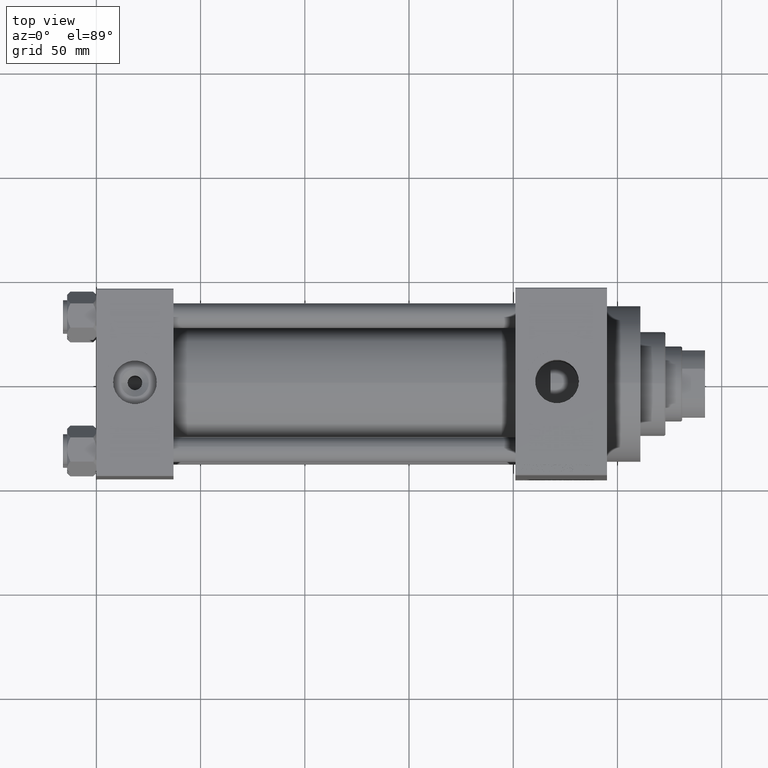
[diagram: clean part render]
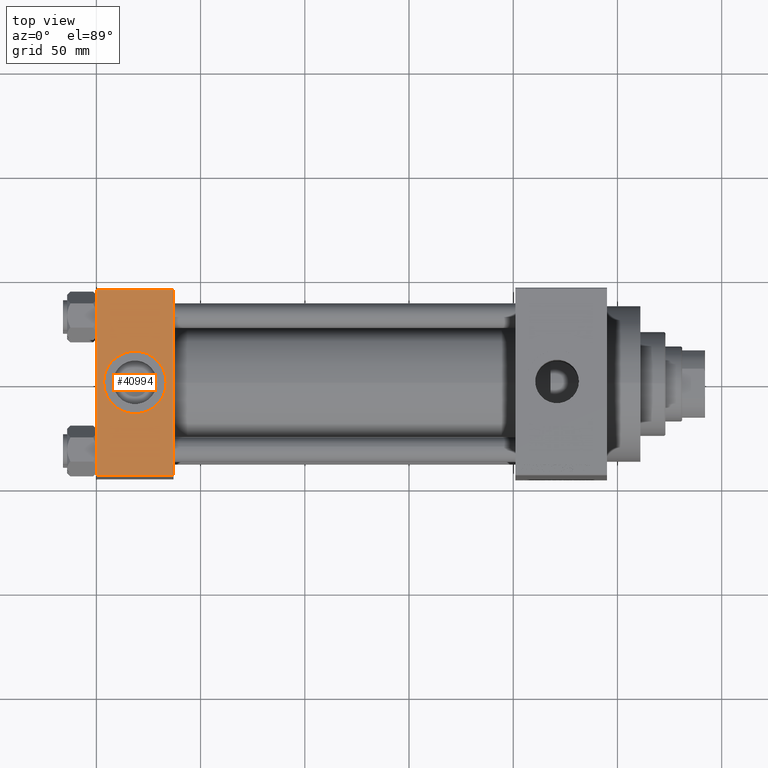
[diagram: same view with one face highlighted and labeled with its STEP entity id]
A machine part, top view. The second image highlights one B-rep face of the part: STEP entity #40994.
In plain terms, the highlighted planar face has unit normal (0, 0, -1).
Its self-contained STEP definition (entity closure, byte-faithful):
#103 = CARTESIAN_POINT ( 'NONE',  ( 0.000000000000000000, 44.99999999999998579, 45.00000000000001421 ) ) ;
#504 = DIRECTION ( 'NONE',  ( 0.000000000000000000, 1.541976423090495633E-16, -1.000000000000000000 ) ) ;
#752 = FACE_OUTER_BOUND ( 'NONE', #27932, .T. ) ;
#1950 = CARTESIAN_POINT ( 'NONE',  ( 37.00000000000000000, 44.49999999999998579, 45.00000000000001421 ) ) ;
#3925 = ORIENTED_EDGE ( 'NONE', *, *, #24373, .T. ) ;
#4435 = VECTOR ( 'NONE', #39180, 1000.000000000000000 ) ;
#4742 = AXIS2_PLACEMENT_3D ( 'NONE', #44869, #504, #7943 ) ;
#5339 = AXIS2_PLACEMENT_3D ( 'NONE', #18826, #40413, #40179 ) ;
#6149 = EDGE_CURVE ( 'NONE', #38509, #46381, #27462, .T. ) ;
#7943 = DIRECTION ( 'NONE',  ( 0.000000000000000000, 1.000000000000000000, 1.541976423090495633E-16 ) ) ;
#8447 = CARTESIAN_POINT ( 'NONE',  ( 33.50000000000000000, -8.673617379884038628E-15, 45.00000000000000711 ) ) ;
#13201 = ORIENTED_EDGE ( 'NONE', *, *, #30077, .F. ) ;
#13878 = EDGE_CURVE ( 'NONE', #27573, #32697, #40089, .T. ) ;
#13923 = DIRECTION ( 'NONE',  ( -1.000000000000000000, 0.000000000000000000, 0.000000000000000000 ) ) ;
#14447 = AXIS2_PLACEMENT_3D ( 'NONE', #22845, #44682, #40841 ) ;
#14890 = DIRECTION ( 'NONE',  ( 0.000000000000000000, -1.000000000000000000, -1.541976423090495387E-16 ) ) ;
#17387 = EDGE_CURVE ( 'NONE', #27573, #17724, #21355, .T. ) ;
#17724 = VERTEX_POINT ( 'NONE', #23415 ) ;
#18826 = CARTESIAN_POINT ( 'NONE',  ( 18.50000000000000000, -8.673617379884038628E-15, 45.00000000000000711 ) ) ;
#20329 = ORIENTED_EDGE ( 'NONE', *, *, #22543, .T. ) ;
#21355 = LINE ( 'NONE', #25186, #27223 ) ;
#22543 = EDGE_CURVE ( 'NONE', #46887, #32697, #32214, .T. ) ;
#22787 = FACE_BOUND ( 'NONE', #29293, .T. ) ;
#22845 = CARTESIAN_POINT ( 'NONE',  ( 18.50000000000000000, -8.673617379884038628E-15, 45.00000000000000711 ) ) ;
#22849 = DIRECTION ( 'NONE',  ( 0.000000000000000000, -1.000000000000000000, -1.541976423090495387E-16 ) ) ;
#23193 = ORIENTED_EDGE ( 'NONE', *, *, #13878, .F. ) ;
#23415 = CARTESIAN_POINT ( 'NONE',  ( 0.000000000000000000, 44.49999999999998579, 45.00000000000001421 ) ) ;
#24373 = EDGE_CURVE ( 'NONE', #17724, #46887, #37245, .T. ) ;
#24546 = CARTESIAN_POINT ( 'NONE',  ( 37.00000000000000000, -44.49999999999998579, 45.00000000000000000 ) ) ;
#24778 = CARTESIAN_POINT ( 'NONE',  ( 3.499999999999997780, -6.836647181163008250E-15, 45.00000000000000711 ) ) ;
#25186 = CARTESIAN_POINT ( 'NONE',  ( 0.000000000000000000, 44.49999999999998579, 45.00000000000001421 ) ) ;
#25335 = VECTOR ( 'NONE', #14890, 1000.000000000000000 ) ;
#25410 = CARTESIAN_POINT ( 'NONE',  ( 37.00000000000000000, -44.49999999999995737, 45.00000000000000000 ) ) ;
#25909 = PLANE ( 'NONE',  #4742 ) ;
#27223 = VECTOR ( 'NONE', #13923, 1000.000000000000000 ) ;
#27462 = CIRCLE ( 'NONE', #14447, 15.00000000000000355 ) ;
#27573 = VERTEX_POINT ( 'NONE', #1950 ) ;
#27932 = EDGE_LOOP ( 'NONE', ( #3925, #20329, #23193, #30671 ) ) ;
#29293 = EDGE_LOOP ( 'NONE', ( #13201, #32093 ) ) ;
#30077 = EDGE_CURVE ( 'NONE', #46381, #38509, #44379, .T. ) ;
#30368 = VECTOR ( 'NONE', #22849, 1000.000000000000000 ) ;
#30671 = ORIENTED_EDGE ( 'NONE', *, *, #17387, .T. ) ;
#32093 = ORIENTED_EDGE ( 'NONE', *, *, #6149, .F. ) ;
#32214 = LINE ( 'NONE', #24546, #4435 ) ;
#32697 = VERTEX_POINT ( 'NONE', #25410 ) ;
#37245 = LINE ( 'NONE', #103, #30368 ) ;
#38509 = VERTEX_POINT ( 'NONE', #24778 ) ;
#39180 = DIRECTION ( 'NONE',  ( 1.000000000000000000, 0.000000000000000000, 0.000000000000000000 ) ) ;
#40089 = LINE ( 'NONE', #47299, #25335 ) ;
#40179 = DIRECTION ( 'NONE',  ( 1.000000000000000000, 0.000000000000000000, 0.000000000000000000 ) ) ;
#40413 = DIRECTION ( 'NONE',  ( 0.000000000000000000, 0.000000000000000000, 1.000000000000000000 ) ) ;
#40841 = DIRECTION ( 'NONE',  ( 1.000000000000000000, 0.000000000000000000, 0.000000000000000000 ) ) ;
#40994 = ADVANCED_FACE ( 'NONE', ( #22787, #752 ), #25909, .F. ) ;
#44379 = CIRCLE ( 'NONE', #5339, 15.00000000000000355 ) ;
#44682 = DIRECTION ( 'NONE',  ( 0.000000000000000000, 0.000000000000000000, 1.000000000000000000 ) ) ;
#44869 = CARTESIAN_POINT ( 'NONE',  ( 37.00000000000000000, 44.99999999999998579, 45.00000000000001421 ) ) ;
#46070 = CARTESIAN_POINT ( 'NONE',  ( 0.000000000000000000, -44.49999999999995737, 45.00000000000000000 ) ) ;
#46381 = VERTEX_POINT ( 'NONE', #8447 ) ;
#46887 = VERTEX_POINT ( 'NONE', #46070 ) ;
#47299 = CARTESIAN_POINT ( 'NONE',  ( 37.00000000000000000, 44.99999999999998579, 45.00000000000001421 ) ) ;